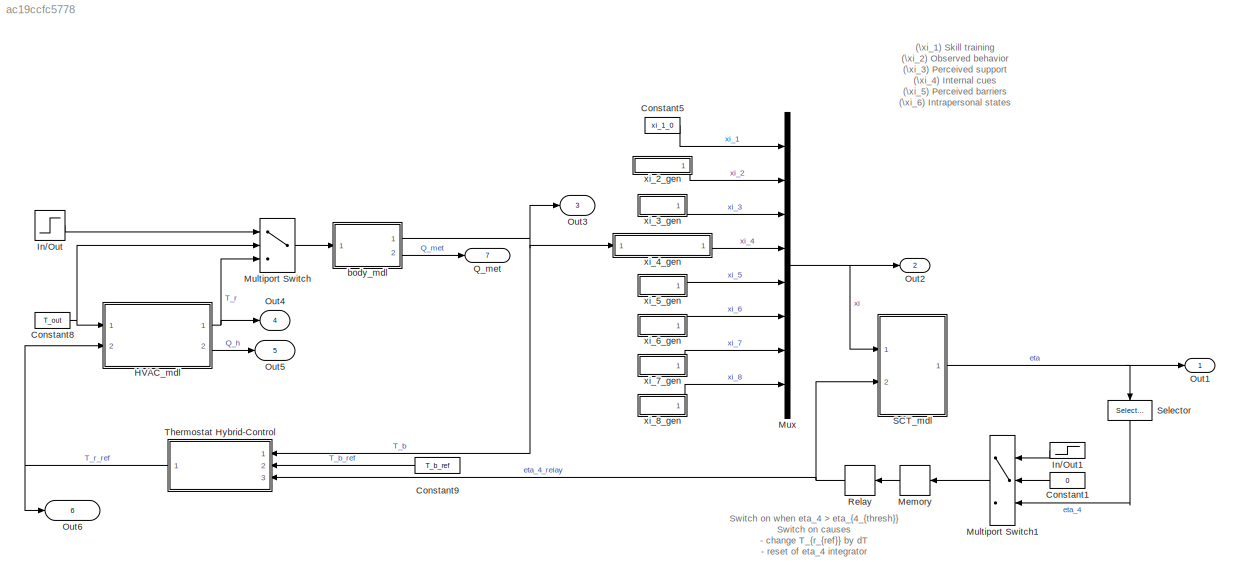
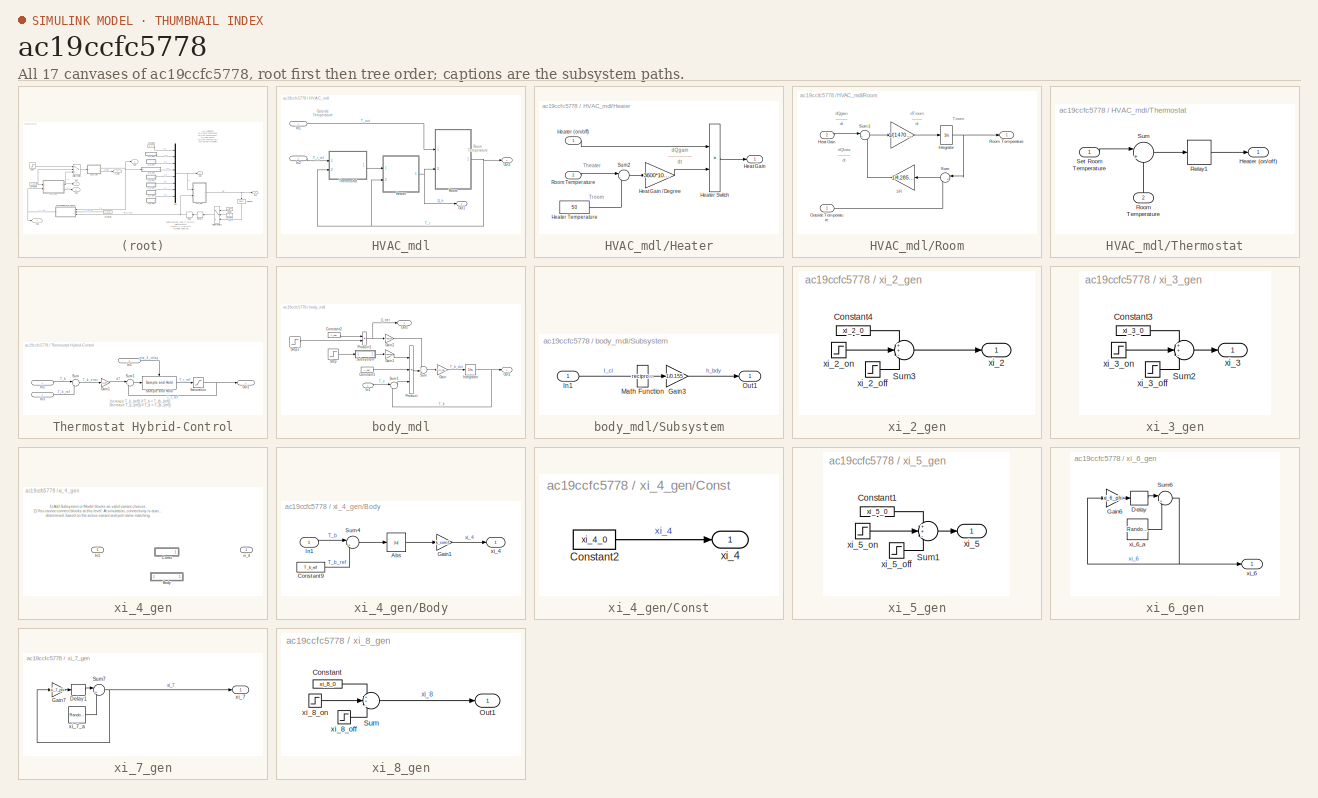
[diagram: thumbnail index - all 17 canvases of the model, root first then tree order]
MODEL slx_ac19ccfc5778
KIND model
CONFIG AbsTol = auto
CONFIG EnableMultiTasking = off
CONFIG FixedStep = auto
CONFIG MaxStep = auto
CONFIG MinStep = auto
CONFIG RelTol = 1e-3
CONFIG SampleTimeConstraint = Unconstrained
CONFIG Solver = VariableStepAuto
CONFIG SolverName = VariableStepAuto
CONFIG StartTime = 0.0
CONFIG StopTime = 24*30
BLOCK [Constant] Constant1
  Value = 0
BLOCK [Constant] Constant5
  Value = xi_1_0
BLOCK [Constant] Constant8
  Value = T_out
BLOCK [Constant] Constant9
  Value = T_b_ref
BLOCK [SubSystem] HVAC_mdl
  Ports = [2, 2]
  RequestExecContextInheritance = off
  Variant = off
BLOCK [SubSystem] HVAC_mdl/Heater
  Ports = [2, 1]
  RequestExecContextInheritance = off
  Variant = off
BLOCK [Outport] HVAC_mdl/Heater/Heat Gain
  IconDisplay = Port number
  Unit = joule/hour
BLOCK [Gain] HVAC_mdl/Heater/Heat Gain // Degree
  Gain = 3600*1005.4
  OutDataTypeStr = Inherit: Inherit via internal rule
  ParamDataTypeStr = Inherit: Inherit via internal rule
  SaturateOnIntegerOverflow = off
BLOCK [Inport] HVAC_mdl/Heater/Heater (on//off)
  IconDisplay = Port number
BLOCK [Product] HVAC_mdl/Heater/Heater Switch
  InputSameDT = off
  OutDataTypeStr = Inherit: Inherit via internal rule
  Ports = [2, 1]
  SaturateOnIntegerOverflow = off
BLOCK [Constant] HVAC_mdl/Heater/Heater Temperature
  Value = 50
BLOCK [Inport] HVAC_mdl/Heater/Room Temperature
  IconDisplay = Port number
  Port = 2
BLOCK [Sum] HVAC_mdl/Heater/Sum2
  IconShape = round
  InputSameDT = off
  Inputs = |-+
  OutDataTypeStr = Inherit: Inherit via internal rule
  Ports = [2, 1]
  SaturateOnIntegerOverflow = off
BLOCK [Inport] HVAC_mdl/In1
  IconDisplay = Signal name
  Unit = °C
BLOCK [Inport] HVAC_mdl/In2
  IconDisplay = Signal name
  Port = 2
  Unit = °C
BLOCK [Outport] HVAC_mdl/Out1
  IconDisplay = Signal name
  Port = 2
  Unit = joule/hour
BLOCK [Outport] HVAC_mdl/Out2
  IconDisplay = Signal name
  Unit = °C
BLOCK [SubSystem] HVAC_mdl/Room
  Ports = [2, 1]
  RequestExecContextInheritance = off
  Variant = off
BLOCK [Gain] HVAC_mdl/Room/ 
  AttributesFormatString = %<Gain>
  Gain = 1/4.285e-7
BLOCK [Gain] HVAC_mdl/Room/  
  AttributesFormatString = %<Gain>
  Gain = 1/(1470*1005.4)
BLOCK [Inport] HVAC_mdl/Room/Heat Gain 
  IconDisplay = Port number
  Port = 2
  Unit = joule/h
BLOCK [Integrator] HVAC_mdl/Room/Integrator
  InitialCondition = 20
  Ports = [1, 1]
BLOCK [Inport] HVAC_mdl/Room/Outside Temperature
  IconDisplay = Port number
  Unit = °C
BLOCK [Outport] HVAC_mdl/Room/Room Temperature
  IconDisplay = Port number
  Unit = °C
BLOCK [Sum] HVAC_mdl/Room/Sum
  IconShape = round
  InputSameDT = off
  Inputs = |+-
  OutDataTypeStr = Inherit: Inherit via internal rule
  Ports = [2, 1]
  SaturateOnIntegerOverflow = off
BLOCK [Sum] HVAC_mdl/Room/Sum1
  IconShape = round
  Inputs = |+-
  Ports = [2, 1]
BLOCK [SubSystem] HVAC_mdl/Thermostat
  Ports = [2, 1]
  RequestExecContextInheritance = off
  Variant = off
BLOCK [Inport] HVAC_mdl/Thermostat/    Room Temperature
  IconDisplay = Port number
  Port = 2
BLOCK [Outport] HVAC_mdl/Thermostat/Heater (on//off)
  IconDisplay = Port number
BLOCK [Relay] HVAC_mdl/Thermostat/Relay1
  OffSwitchValue = -T_r_db
  OnSwitchValue = T_r_db
BLOCK [Inport] HVAC_mdl/Thermostat/Set Room Temperature
  IconDisplay = Port number
BLOCK [Sum] HVAC_mdl/Thermostat/Sum
  IconShape = round
  Inputs = |+-
  Ports = [2, 1]
BLOCK [Step] In//Out
  After = in_out_1
  Before = in_out_0
  SampleTime = 0
  Time = in_out_t
BLOCK [Step] In//Out1
  After = in_out_1
  Before = in_out_0
  SampleTime = 0
  Time = in_out_t
BLOCK [Memory] Memory
BLOCK [MultiPortSwitch] Multiport Switch
  InputSameDT = off
  Inputs = 2
  Ports = [3, 1]
  SaturateOnIntegerOverflow = off
BLOCK [MultiPortSwitch] Multiport Switch1
  InputSameDT = off
  Inputs = 2
  Ports = [3, 1]
  SaturateOnIntegerOverflow = off
BLOCK [Mux] Mux
  DisplayOption = bar
  Inputs = 8
  Ports = [8, 1]
BLOCK [Outport] Out1
  IconDisplay = Signal name
BLOCK [Outport] Out2
  IconDisplay = Signal name
  Port = 2
BLOCK [Outport] Out3
  IconDisplay = Signal name
  Port = 3
BLOCK [Outport] Out4
  IconDisplay = Signal name
  Port = 4
BLOCK [Outport] Out5
  IconDisplay = Signal name
  Port = 5
BLOCK [Outport] Out6
  IconDisplay = Signal name
  Port = 6
BLOCK [Outport] Q_met
  IconDisplay = Signal name
  Port = 7
BLOCK [Relay] Relay
  InputProcessing = Elements as channels (sample based)
  OffSwitchValue = eta_4_thresh * 0.99
  OnSwitchValue = min(eta_4_thresh * 1.01, 100-eps)
BLOCK [ModelReference] SCT_mdl
  ModelNameDialog = SCT_mdl.slx
  ModelReferenceVersion = 1.3
  Ports = [2, 1]
  Variant = off
BLOCK [Selector] Selector
  IndexOptions = Index vector (dialog)
  Indices = 4
  InputPortWidth = 6
  OutputSizes = 1
  Ports = [1, 1]
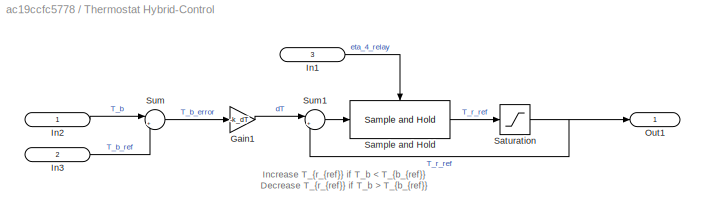
BLOCK [SubSystem] Thermostat Hybrid-Control
  Ports = [3, 1]
  RequestExecContextInheritance = off
  Variant = off
  VariantControl = VSS_thermostat==1
BLOCK [Gain] Thermostat Hybrid-Control/Gain1
  AttributesFormatString = %<Gain>
  Gain = -k_dT
  OutDataTypeStr = Inherit: Inherit via internal rule
  ParamDataTypeStr = Inherit: Inherit via internal rule
  SaturateOnIntegerOverflow = off
BLOCK [Inport] Thermostat Hybrid-Control/In1
  IconDisplay = Signal name
  Port = 3
BLOCK [Inport] Thermostat Hybrid-Control/In2
  IconDisplay = Signal name
BLOCK [Inport] Thermostat Hybrid-Control/In3
  IconDisplay = Signal name
  Port = 2
BLOCK [Outport] Thermostat Hybrid-Control/Out1
  IconDisplay = Signal name
  InitialOutput = T_r_ref_0
BLOCK [Reference] Thermostat Hybrid-Control/Sample and Hold  REF=dspsigops/Sample
and Hold
  Ports = [1, 1, 0, 1]
  SourceBlock = dspsigops/Sample\nand Hold
  SourceProductBaseCode = DS
  SourceProductName = DSP System Toolbox
  SourceType = Sample and Hold
BLOCK [Saturate] Thermostat Hybrid-Control/Saturation
  InputPortMap = u0
  LowerLimit = 10
  Ports = [1, 1]
  UpperLimit = 35
BLOCK [Sum] Thermostat Hybrid-Control/Sum
  IconShape = round
  InputSameDT = off
  Inputs = |+-
  OutDataTypeStr = Inherit: Inherit via internal rule
  Ports = [2, 1]
  SaturateOnIntegerOverflow = off
BLOCK [Sum] Thermostat Hybrid-Control/Sum1
  IconShape = round
  InputSameDT = off
  Inputs = |++
  OutDataTypeStr = Inherit: Inherit via internal rule
  Ports = [2, 1]
  SaturateOnIntegerOverflow = off
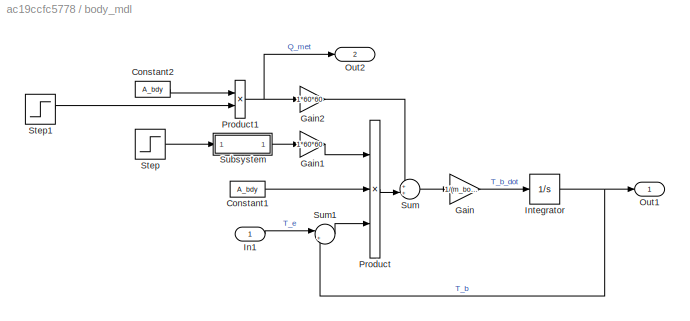
BLOCK [SubSystem] body_mdl
  Ports = [1, 2]
  RequestExecContextInheritance = off
  Variant = off
BLOCK [Constant] body_mdl/Constant1
  Value = A_bdy
BLOCK [Constant] body_mdl/Constant2
  Value = A_bdy
BLOCK [Gain] body_mdl/Gain
  AttributesFormatString = %<Gain>
  Gain = 1/(m_body*cp_body)
  OutDataTypeStr = Inherit: Inherit via internal rule
  ParamDataTypeStr = Inherit: Inherit via internal rule
  SaturateOnIntegerOverflow = off
BLOCK [Gain] body_mdl/Gain1
  AttributesFormatString = W to J/hr
  Gain = 1*60*60
  OutDataTypeStr = Inherit: Inherit via internal rule
  ParamDataTypeStr = Inherit: Inherit via internal rule
  SaturateOnIntegerOverflow = off
BLOCK [Gain] body_mdl/Gain2
  AttributesFormatString = W to J/hr
  Gain = 1*60*60
  OutDataTypeStr = Inherit: Inherit via internal rule
  ParamDataTypeStr = Inherit: Inherit via internal rule
  SaturateOnIntegerOverflow = off
BLOCK [Inport] body_mdl/In1
  IconDisplay = Signal name
BLOCK [Integrator] body_mdl/Integrator
  InitialCondition = T_b_0
  Ports = [1, 1]
BLOCK [Outport] body_mdl/Out1
  IconDisplay = Signal name
BLOCK [Outport] body_mdl/Out2
  IconDisplay = Signal name
  Port = 2
BLOCK [Product] body_mdl/Product
  InputSameDT = off
  Inputs = 3
  OutDataTypeStr = Inherit: Inherit via internal rule
  Ports = [3, 1]
  RndMeth = Floor
  SaturateOnIntegerOverflow = off
BLOCK [Product] body_mdl/Product1
  InputSameDT = off
  OutDataTypeStr = Inherit: Inherit via internal rule
  Ports = [2, 1]
  RndMeth = Floor
  SaturateOnIntegerOverflow = off
BLOCK [Step] body_mdl/Step
  After = clothings.(clothing_1).val
  AttributesFormatString = %<Time>\n%<Before>\n%<After>
  Before = clothings.(clothing_0).val
  SampleTime = 0
  Time = clothing_t
BLOCK [Step] body_mdl/Step1
  After = activities.(activity_1).val
  AttributesFormatString = %<Time>\n%<Before>\n%<After>
  Before = activities.(activity_0).val
  SampleTime = 0
  Time = activity_t
BLOCK [SubSystem] body_mdl/Subsystem
  Ports = [1, 1]
  RequestExecContextInheritance = off
  Variant = off
BLOCK [Gain] body_mdl/Subsystem/Gain3
  AttributesFormatString = %<Gain>
  Gain = 1/0.155
  OutDataTypeStr = Inherit: Inherit via internal rule
  ParamDataTypeStr = Inherit: Inherit via internal rule
  SaturateOnIntegerOverflow = off
BLOCK [Inport] body_mdl/Subsystem/In1
  IconDisplay = Signal name
BLOCK [Math] body_mdl/Subsystem/Math Function
  Operator = reciprocal
  Ports = [1, 1]
BLOCK [Outport] body_mdl/Subsystem/Out1
  IconDisplay = Signal name
BLOCK [Sum] body_mdl/Sum
  IconShape = round
  InputSameDT = off
  Inputs = ++|
  OutDataTypeStr = Inherit: Inherit via internal rule
  Ports = [2, 1]
  SaturateOnIntegerOverflow = off
BLOCK [Sum] body_mdl/Sum1
  IconShape = round
  InputSameDT = off
  Inputs = |+-
  OutDataTypeStr = Inherit: Inherit via internal rule
  Ports = [2, 1]
  SaturateOnIntegerOverflow = off
BLOCK [SubSystem] xi_2_gen
  Ports = [0, 1]
  RequestExecContextInheritance = off
  Variant = off
  VariantControl = VSS_xi_8_gen_switch
BLOCK [Constant] xi_2_gen/Constant4
  Value = xi_2_0
BLOCK [Sum] xi_2_gen/Sum3
  IconShape = round
  InputSameDT = off
  Inputs = ++-
  OutDataTypeStr = Inherit: Inherit via internal rule
  Ports = [3, 1]
  SaturateOnIntegerOverflow = off
BLOCK [Outport] xi_2_gen/xi_2
  IconDisplay = Port number
BLOCK [Step] xi_2_gen/xi_2_off
  After = xi_2_on - xi_2_0
  SampleTime = 0
  Time = t_xi_2_off
BLOCK [Step] xi_2_gen/xi_2_on
  After = xi_2_on - xi_2_0
  SampleTime = 0
  Time = t_xi_2_on
BLOCK [SubSystem] xi_3_gen
  Ports = [0, 1]
  RequestExecContextInheritance = off
  Variant = off
BLOCK [Constant] xi_3_gen/Constant3
  Value = xi_3_0
BLOCK [Sum] xi_3_gen/Sum2
  IconShape = round
  InputSameDT = off
  Inputs = ++-
  OutDataTypeStr = Inherit: Inherit via internal rule
  Ports = [3, 1]
  SaturateOnIntegerOverflow = off
BLOCK [Outport] xi_3_gen/xi_3
  IconDisplay = Port number
BLOCK [Step] xi_3_gen/xi_3_off
  After = xi_3_on - xi_3_0
  SampleTime = 0
  Time = t_xi_3_off
BLOCK [Step] xi_3_gen/xi_3_on
  After = xi_3_on - xi_3_0
  SampleTime = 0
  Time = t_xi_3_on
BLOCK [SubSystem] xi_4_gen
  Ports = [1, 1]
  RequestExecContextInheritance = off
  Variant = on
BLOCK [SubSystem] xi_4_gen/Body
  Ports = [1, 1]
  RequestExecContextInheritance = off
  Variant = off
  VariantControl = VSS_xi_4_gen==2
BLOCK [Abs] xi_4_gen/Body/Abs
  SaturateOnIntegerOverflow = off
BLOCK [Constant] xi_4_gen/Body/Constant9
  Value = T_b_ref
BLOCK [Gain] xi_4_gen/Body/Gain1
  AttributesFormatString = %<Gain>
  Gain = k_comf
  OutDataTypeStr = Inherit: Inherit via internal rule
  ParamDataTypeStr = Inherit: Inherit via internal rule
  SaturateOnIntegerOverflow = off
BLOCK [Inport] xi_4_gen/Body/In1
  IconDisplay = Signal name
BLOCK [Sum] xi_4_gen/Body/Sum4
  IconShape = round
  InputSameDT = off
  Inputs = |+-
  OutDataTypeStr = Inherit: Inherit via internal rule
  Ports = [2, 1]
  SaturateOnIntegerOverflow = off
BLOCK [Outport] xi_4_gen/Body/xi_4
  IconDisplay = Signal name
BLOCK [SubSystem] xi_4_gen/Const
  Ports = [0, 1]
  RequestExecContextInheritance = off
  Variant = off
  VariantControl = VSS_xi_4_gen==1
BLOCK [Constant] xi_4_gen/Const/Constant2
  Value = xi_4_0
BLOCK [Outport] xi_4_gen/Const/xi_4
  IconDisplay = Port number
BLOCK [Inport] xi_4_gen/In1
  IconDisplay = Signal name
BLOCK [Outport] xi_4_gen/xi_4
  IconDisplay = Signal name
BLOCK [SubSystem] xi_5_gen
  Ports = [0, 1]
  RequestExecContextInheritance = off
  Variant = off
BLOCK [Constant] xi_5_gen/Constant1
  Value = xi_5_0
BLOCK [Sum] xi_5_gen/Sum1
  IconShape = round
  InputSameDT = off
  Inputs = ++-
  OutDataTypeStr = Inherit: Inherit via internal rule
  Ports = [3, 1]
  SaturateOnIntegerOverflow = off
BLOCK [Outport] xi_5_gen/xi_5
  IconDisplay = Port number
BLOCK [Step] xi_5_gen/xi_5_off
  After = xi_5_on - xi_5_0
  SampleTime = 0
  Time = t_xi_5_off
BLOCK [Step] xi_5_gen/xi_5_on
  After = xi_5_on - xi_5_0
  SampleTime = 0
  Time = t_xi_5_on
BLOCK [SubSystem] xi_6_gen
  Ports = [0, 1]
  RequestExecContextInheritance = off
  Variant = off
BLOCK [Delay] xi_6_gen/Delay
  DelayLength = 1
  InputPortMap = u0
  Ports = [1, 1]
BLOCK [Gain] xi_6_gen/Gain6
  AttributesFormatString = %<Gain>
  Gain = xi_6_phi
  OutDataTypeStr = Inherit: Inherit via internal rule
  ParamDataTypeStr = Inherit: Inherit via internal rule
  SaturateOnIntegerOverflow = off
BLOCK [Sum] xi_6_gen/Sum6
  IconShape = round
  InputSameDT = off
  Inputs = |++
  OutDataTypeStr = Inherit: Inherit via internal rule
  Ports = [2, 1]
  SaturateOnIntegerOverflow = off
BLOCK [Outport] xi_6_gen/xi_6
  IconDisplay = Port number
BLOCK [RandomNumber] xi_6_gen/xi_6_a
  SampleTime = 0.1
  Variance = xi_6_var
BLOCK [SubSystem] xi_7_gen
  Ports = [0, 1]
  RequestExecContextInheritance = off
  Variant = off
BLOCK [Delay] xi_7_gen/Delay1
  DelayLength = 1
  InputPortMap = u0
  Ports = [1, 1]
BLOCK [Gain] xi_7_gen/Gain7
  AttributesFormatString = %<Gain>
  Gain = xi_7_phi
  OutDataTypeStr = Inherit: Inherit via internal rule
  ParamDataTypeStr = Inherit: Inherit via internal rule
  SaturateOnIntegerOverflow = off
BLOCK [Sum] xi_7_gen/Sum7
  IconShape = round
  InputSameDT = off
  Inputs = |++
  OutDataTypeStr = Inherit: Inherit via internal rule
  Ports = [2, 1]
  SaturateOnIntegerOverflow = off
BLOCK [Outport] xi_7_gen/xi_7
  IconDisplay = Port number
BLOCK [RandomNumber] xi_7_gen/xi_7_a
  SampleTime = 0.1
  Variance = xi_7_var
BLOCK [SubSystem] xi_8_gen
  Ports = [0, 1]
  RequestExecContextInheritance = off
  Variant = off
BLOCK [Constant] xi_8_gen/Constant
  Value = xi_8_0
BLOCK [Outport] xi_8_gen/Out1
  IconDisplay = Signal name
BLOCK [Sum] xi_8_gen/Sum
  IconShape = round
  InputSameDT = off
  Inputs = ++-
  OutDataTypeStr = Inherit: Inherit via internal rule
  Ports = [3, 1]
  SaturateOnIntegerOverflow = off
BLOCK [Step] xi_8_gen/xi_8_off
  After = xi_8_on - xi_8_0
  SampleTime = 0
  Time = t_xi_8_off
BLOCK [Step] xi_8_gen/xi_8_on
  After = xi_8_on - xi_8_0
  SampleTime = 0
  Time = t_xi_8_on
ANNOTATION (root): (\xi_1) Skill training (\xi_2) Observed behavior (\xi_3) Perceived support (\xi_4) Internal cues (\xi_5) Perceived barriers (\xi_6) Intrapersonal states (\xi_7) Environmental context (\xi_8) External cues (\eta_1) Self-management skills (\eta_2) Outcome expectancy (\eta_3) Self-efficacy (\eta_4) Behavior (\eta_5) Behavioral outcomes (\eta_6) Cue to action (T_b) Body temperature (T_{b_{ref}}) Body ...<+82ch>
ANNOTATION (root): Switch on when eta_4 > eta_{4_{thresh}} Switch on causes - change T_{r_{ref}} by dT - reset of eta_4 integrator
ANNOTATION HVAC_mdl: Outside Temperature
ANNOTATION HVAC_mdl: Room Temperature
ANNOTATION HVAC_mdl/Heater: Theater
ANNOTATION HVAC_mdl/Heater: Troom
ANNOTATION HVAC_mdl/Heater: dQgain ------------ dt
ANNOTATION HVAC_mdl/Room: 1/R
ANNOTATION HVAC_mdl/Room: Troom
ANNOTATION HVAC_mdl/Room: dQgain ------------ dt
ANNOTATION HVAC_mdl/Room: dQloss ------------ dt
ANNOTATION HVAC_mdl/Room: dTroom ---------- dt
ANNOTATION Thermostat Hybrid-Control: Increase T_{r_{ref}} if T_b T_{b_{ref}}
ANNOTATION xi_4_gen: 1) Add Subsystem or Model blocks as valid variant choices. 2) You cannot connect blocks at this level. At simulation, connectivity is automatically determined, based on the active variant and port name matching.
LINE Constant1:1 -> Multiport Switch1:2
LINE Constant5:1 -> Mux:1
NET Constant8:1 -> HVAC_mdl:1, Multiport Switch:2
LINE Constant9:1 -> Thermostat Hybrid-Control:2
LINE HVAC_mdl/Heater/Heat Gain // Degree:1 -> HVAC_mdl/Heater/Heater Switch:2
LINE HVAC_mdl/Heater/Heater (on//off):1 -> HVAC_mdl/Heater/Heater Switch:1
LINE HVAC_mdl/Heater/Heater Switch:1 -> HVAC_mdl/Heater/Heat Gain:1
LINE HVAC_mdl/Heater/Heater Temperature:1 -> HVAC_mdl/Heater/Sum2:2
LINE HVAC_mdl/Heater/Room Temperature:1 -> HVAC_mdl/Heater/Sum2:1
LINE HVAC_mdl/Heater/Sum2:1 -> HVAC_mdl/Heater/Heat Gain // Degree:1
NET HVAC_mdl/Heater:1 -> HVAC_mdl/Out1:1, HVAC_mdl/Room:2
LINE HVAC_mdl/In1:1 -> HVAC_mdl/Room:1
LINE HVAC_mdl/In2:1 -> HVAC_mdl/Thermostat:1
LINE HVAC_mdl/Room/  :1 -> HVAC_mdl/Room/Integrator:1
LINE HVAC_mdl/Room/ :1 -> HVAC_mdl/Room/Sum1:2
LINE HVAC_mdl/Room/Heat Gain :1 -> HVAC_mdl/Room/Sum1:1
NET HVAC_mdl/Room/Integrator:1 -> HVAC_mdl/Room/Room Temperature:1, HVAC_mdl/Room/Sum:1
LINE HVAC_mdl/Room/Outside Temperature:1 -> HVAC_mdl/Room/Sum:2
LINE HVAC_mdl/Room/Sum1:1 -> HVAC_mdl/Room/  :1
LINE HVAC_mdl/Room/Sum:1 -> HVAC_mdl/Room/ :1
NET HVAC_mdl/Room:1 -> HVAC_mdl/Heater:2, HVAC_mdl/Out2:1, HVAC_mdl/Thermostat:2
LINE HVAC_mdl/Thermostat/    Room Temperature:1 -> HVAC_mdl/Thermostat/Sum:2
LINE HVAC_mdl/Thermostat/Relay1:1 -> HVAC_mdl/Thermostat/Heater (on//off):1
LINE HVAC_mdl/Thermostat/Set Room Temperature:1 -> HVAC_mdl/Thermostat/Sum:1
LINE HVAC_mdl/Thermostat/Sum:1 -> HVAC_mdl/Thermostat/Relay1:1
LINE HVAC_mdl/Thermostat:1 -> HVAC_mdl/Heater:1
NET HVAC_mdl:1 -> Multiport Switch:3, Out4:1
LINE HVAC_mdl:2 -> Out5:1
LINE In//Out1:1 -> Multiport Switch1:1
LINE In//Out:1 -> Multiport Switch:1
LINE Memory:1 -> Relay:1
LINE Multiport Switch1:1 -> Memory:1
LINE Multiport Switch:1 -> body_mdl:1
NET Mux:1 -> Out2:1, SCT_mdl:1
NET Relay:1 -> SCT_mdl:2, Thermostat Hybrid-Control:3
NET SCT_mdl:1 -> Out1:1, Selector:1
LINE Selector:1 -> Multiport Switch1:3
LINE Thermostat Hybrid-Control/Gain1:1 -> Thermostat Hybrid-Control/Sum1:1
LINE Thermostat Hybrid-Control/In1:1 -> Thermostat Hybrid-Control/Sample and Hold:trigger
LINE Thermostat Hybrid-Control/In2:1 -> Thermostat Hybrid-Control/Sum:1
LINE Thermostat Hybrid-Control/In3:1 -> Thermostat Hybrid-Control/Sum:2
LINE Thermostat Hybrid-Control/Sample and Hold:1 -> Thermostat Hybrid-Control/Saturation:1
NET Thermostat Hybrid-Control/Saturation:1 -> Thermostat Hybrid-Control/Out1:1, Thermostat Hybrid-Control/Sum1:2
LINE Thermostat Hybrid-Control/Sum1:1 -> Thermostat Hybrid-Control/Sample and Hold:1
LINE Thermostat Hybrid-Control/Sum:1 -> Thermostat Hybrid-Control/Gain1:1
NET Thermostat Hybrid-Control:1 -> HVAC_mdl:2, Out6:1
LINE body_mdl/Constant1:1 -> body_mdl/Product:2
LINE body_mdl/Constant2:1 -> body_mdl/Product1:1
LINE body_mdl/Gain1:1 -> body_mdl/Product:1
LINE body_mdl/Gain2:1 -> body_mdl/Sum:1
LINE body_mdl/Gain:1 -> body_mdl/Integrator:1
LINE body_mdl/In1:1 -> body_mdl/Sum1:1
NET body_mdl/Integrator:1 -> body_mdl/Out1:1, body_mdl/Sum1:2
NET body_mdl/Product1:1 -> body_mdl/Gain2:1, body_mdl/Out2:1
LINE body_mdl/Product:1 -> body_mdl/Sum:2
LINE body_mdl/Step1:1 -> body_mdl/Product1:2
LINE body_mdl/Step:1 -> body_mdl/Subsystem:1
LINE body_mdl/Subsystem/Gain3:1 -> body_mdl/Subsystem/Out1:1
LINE body_mdl/Subsystem/In1:1 -> body_mdl/Subsystem/Math Function:1
LINE body_mdl/Subsystem/Math Function:1 -> body_mdl/Subsystem/Gain3:1
LINE body_mdl/Subsystem:1 -> body_mdl/Gain1:1
LINE body_mdl/Sum1:1 -> body_mdl/Product:3
LINE body_mdl/Sum:1 -> body_mdl/Gain:1
NET body_mdl:1 -> Out3:1, Thermostat Hybrid-Control:1, xi_4_gen:1
LINE body_mdl:2 -> Q_met:1
LINE xi_2_gen/Constant4:1 -> xi_2_gen/Sum3:1
LINE xi_2_gen/Sum3:1 -> xi_2_gen/xi_2:1
LINE xi_2_gen/xi_2_off:1 -> xi_2_gen/Sum3:3
LINE xi_2_gen/xi_2_on:1 -> xi_2_gen/Sum3:2
LINE xi_2_gen:1 -> Mux:2
LINE xi_3_gen/Constant3:1 -> xi_3_gen/Sum2:1
LINE xi_3_gen/Sum2:1 -> xi_3_gen/xi_3:1
LINE xi_3_gen/xi_3_off:1 -> xi_3_gen/Sum2:3
LINE xi_3_gen/xi_3_on:1 -> xi_3_gen/Sum2:2
LINE xi_3_gen:1 -> Mux:3
LINE xi_4_gen/Body/Abs:1 -> xi_4_gen/Body/Gain1:1
LINE xi_4_gen/Body/Constant9:1 -> xi_4_gen/Body/Sum4:2
LINE xi_4_gen/Body/Gain1:1 -> xi_4_gen/Body/xi_4:1
LINE xi_4_gen/Body/In1:1 -> xi_4_gen/Body/Sum4:1
LINE xi_4_gen/Body/Sum4:1 -> xi_4_gen/Body/Abs:1
LINE xi_4_gen/Const/Constant2:1 -> xi_4_gen/Const/xi_4:1
LINE xi_4_gen:1 -> Mux:4
LINE xi_5_gen/Constant1:1 -> xi_5_gen/Sum1:1
LINE xi_5_gen/Sum1:1 -> xi_5_gen/xi_5:1
LINE xi_5_gen/xi_5_off:1 -> xi_5_gen/Sum1:3
LINE xi_5_gen/xi_5_on:1 -> xi_5_gen/Sum1:2
LINE xi_5_gen:1 -> Mux:5
LINE xi_6_gen/Delay:1 -> xi_6_gen/Sum6:1
LINE xi_6_gen/Gain6:1 -> xi_6_gen/Delay:1
NET xi_6_gen/Sum6:1 -> xi_6_gen/Gain6:1, xi_6_gen/xi_6:1
LINE xi_6_gen/xi_6_a:1 -> xi_6_gen/Sum6:2
LINE xi_6_gen:1 -> Mux:6
LINE xi_7_gen/Delay1:1 -> xi_7_gen/Sum7:1
LINE xi_7_gen/Gain7:1 -> xi_7_gen/Delay1:1
NET xi_7_gen/Sum7:1 -> xi_7_gen/Gain7:1, xi_7_gen/xi_7:1
LINE xi_7_gen/xi_7_a:1 -> xi_7_gen/Sum7:2
LINE xi_7_gen:1 -> Mux:7
LINE xi_8_gen/Constant:1 -> xi_8_gen/Sum:1
LINE xi_8_gen/Sum:1 -> xi_8_gen/Out1:1
LINE xi_8_gen/xi_8_off:1 -> xi_8_gen/Sum:3
LINE xi_8_gen/xi_8_on:1 -> xi_8_gen/Sum:2
LINE xi_8_gen:1 -> Mux:8
note: NET lines group one-source signal fan-out (src -> all destinations, sorted); 1:1 wires keep LINE
